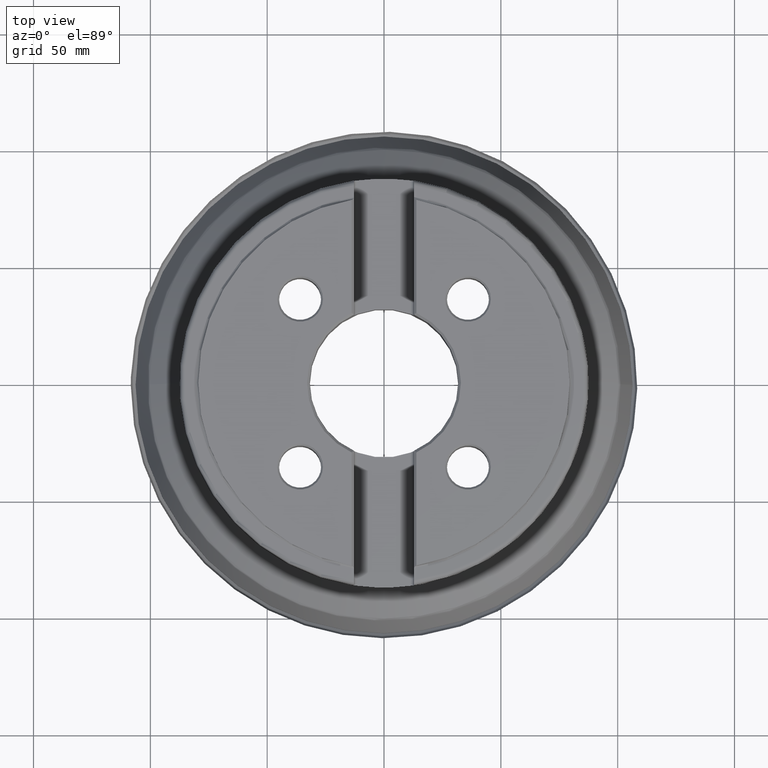
[diagram: clean part render]
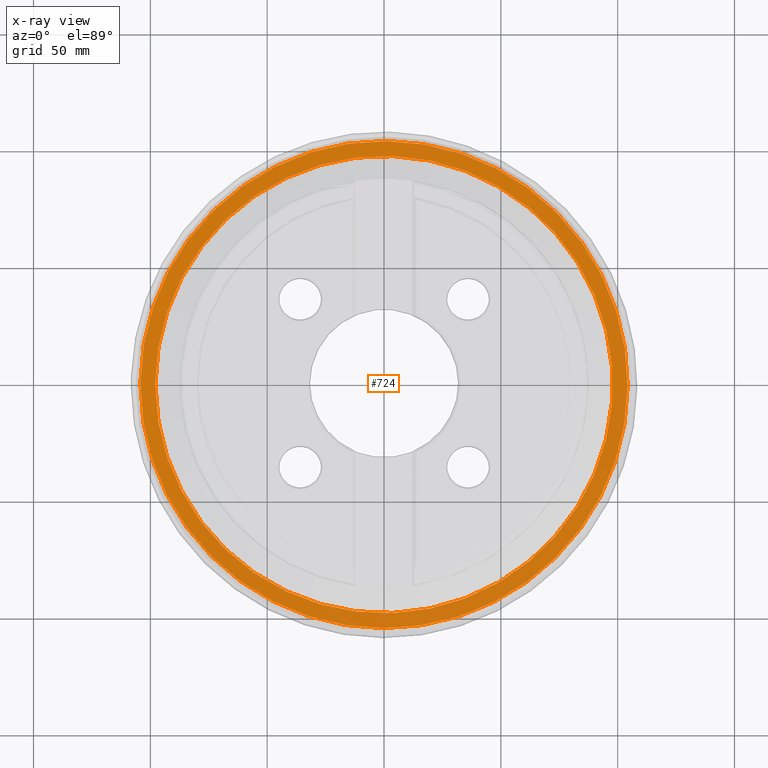
[diagram: x-ray — body ghosted, one internal face saturated and labeled with its STEP entity id]
A machine part, top view, then the same camera in x-ray: the body is ghosted and one INTERNAL B-rep face — a face not visible from any outside direction — is saturated and labeled: STEP entity #724.
In plain terms, the highlighted face is a SurfaceOfRevolution surface.
Its self-contained STEP definition (entity closure, byte-faithful):
#113=SURFACE_OF_REVOLUTION('',#2572,#143);
#143=AXIS1_PLACEMENT('',#4819,#3609);
#724=ADVANCED_FACE('',(#884,#885),#113,.F.);
#884=FACE_BOUND('',#1128,.T.);
#885=FACE_BOUND('',#1129,.T.);
#1128=EDGE_LOOP('',(#1754));
#1129=EDGE_LOOP('',(#1755));
#1754=ORIENTED_EDGE('',*,*,#2307,.T.);
#1755=ORIENTED_EDGE('',*,*,#2308,.F.);
#1994=VERTEX_POINT('',#4805);
#1995=VERTEX_POINT('',#4813);
#2307=EDGE_CURVE('',#1994,#1994,#2484,.T.);
#2308=EDGE_CURVE('',#1995,#1995,#2485,.T.);
#2484=CIRCLE('',#2887,104.251062474505);
#2485=CIRCLE('',#2888,97.8600999544909);
#2572=B_SPLINE_CURVE_WITH_KNOTS('',3,(#4814,#4815,#4816,#4817,#4818),
 .UNSPECIFIED.,.F.,.F.,(4,1,4),(0.,0.5,1.),.UNSPECIFIED.);
#2887=AXIS2_PLACEMENT_3D('',#4804,#3604,#3605);
#2888=AXIS2_PLACEMENT_3D('',#4812,#3607,#3608);
#3604=DIRECTION('',(-1.17145536458252E-15,0.,-1.));
#3605=DIRECTION('',(-1.,0.,1.16479046290845E-15));
#3607=DIRECTION('',(-1.17145536458252E-15,0.,-1.));
#3608=DIRECTION('',(-1.,0.,1.16995332589802E-15));
#3609=DIRECTION('',(-1.17145536458252E-15,0.,-1.));
#4804=CARTESIAN_POINT('',(1.70692888286138E-14,0.,14.5710108508461));
#4805=CARTESIAN_POINT('',(-104.251062474505,0.,14.5710108508462));
#4812=CARTESIAN_POINT('',(1.71431118934923E-14,0.,14.6340290990102));
#4813=CARTESIAN_POINT('',(-97.8600999544909,0.,14.6340290990103));
#4814=CARTESIAN_POINT('',(-18.023957559808,96.1859455273232,14.6340290990102));
#4815=CARTESIAN_POINT('',(-17.8245413374528,97.2562013799579,14.6516739896681));
#4816=CARTESIAN_POINT('',(-17.6251114433058,99.4340241402627,14.6585749047096));
#4817=CARTESIAN_POINT('',(-17.8245276656668,101.611376405334,14.6094208899696));
#4818=CARTESIAN_POINT('',(-18.0239575598197,102.681161762735,14.5710108508461));
#4819=CARTESIAN_POINT('',(0.,0.,0.));